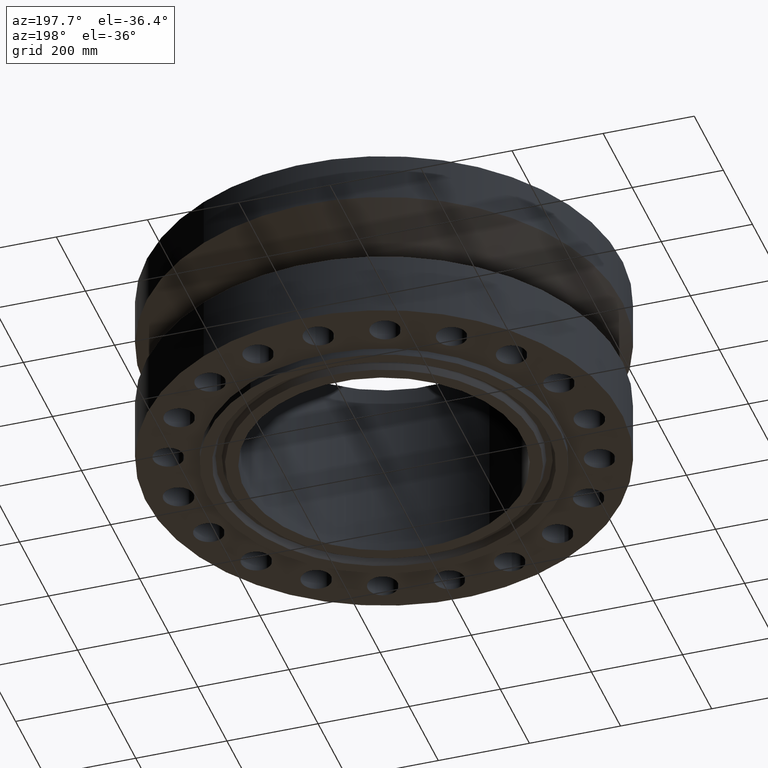
[diagram: clean part render]
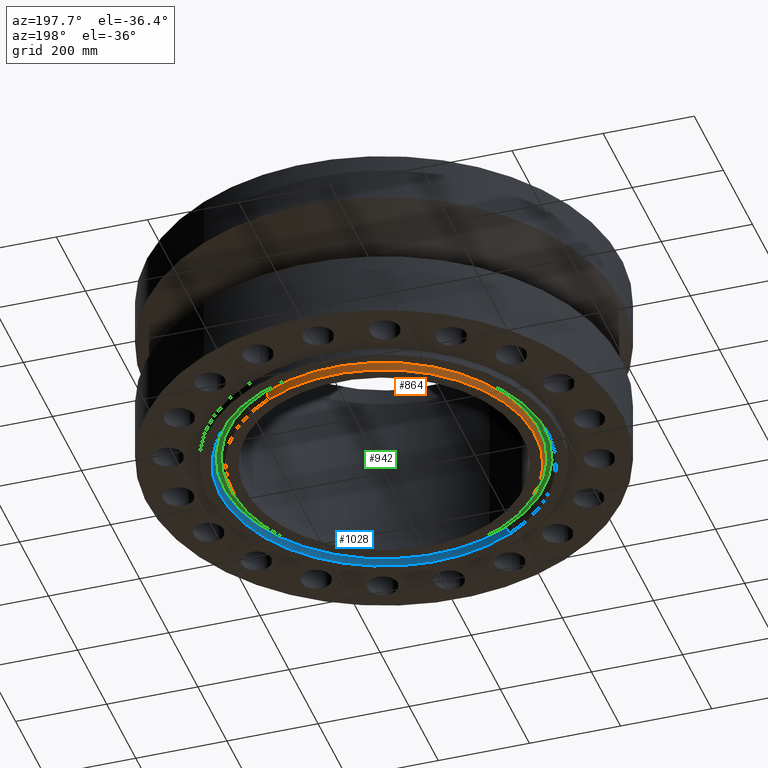
[diagram: same view with three faces highlighted in distinct colors, each labeled with its STEP entity id]
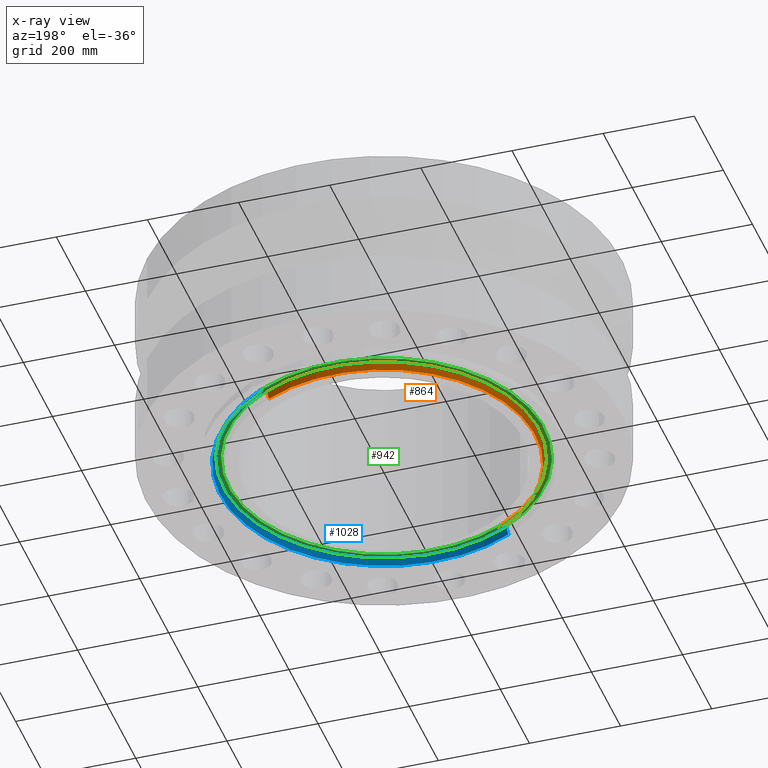
[diagram: x-ray of the same camera — body ghosted, the three highlighted faces saturated]
A machine part, auxiliary view with three faces highlighted in distinct colors.
The next image is the same camera in x-ray (body ghosted, the three faces saturated) — at least one of them is partly hidden behind the body in this view.
Their STEP definitions:

[orange] entity #864 — the highlighted conical surface has half-angle 23 deg.
#813=AXIS2_PLACEMENT_3D('Circle Axis2P3D',#811,#812,$) ;
#837=AXIS2_PLACEMENT_3D('Cone Axis2P3D',#834,#835,#836) ;
#848=AXIS2_PLACEMENT_3D('Circle Axis2P3D',#846,#847,$) ;
#811=CARTESIAN_POINT('Axis2P3D Location',(0.,0.,-0.625000000003)) ;
#815=CARTESIAN_POINT('Vertex',(-6.27735828974,-11.4906272742,-0.625000000002)) ;
#817=CARTESIAN_POINT('Vertex',(6.27735828974,11.4906272742,-0.625000000002)) ;
#834=CARTESIAN_POINT('Axis2P3D Location',(0.,0.,-0.625000000002)) ;
#839=CARTESIAN_POINT('Line Origine',(-6.3351258422,-11.5963700697,-0.341135636962)) ;
#843=CARTESIAN_POINT('Vertex',(-6.39289339467,-11.7021128652,-0.0572712739222)) ;
#846=CARTESIAN_POINT('Axis2P3D Location',(0.,0.,-0.0572712739222)) ;
#850=CARTESIAN_POINT('Vertex',(6.39289339467,11.7021128652,-0.0572712739222)) ;
#853=CARTESIAN_POINT('Line Origine',(6.3351258422,11.5963700697,-0.341135636962)) ;
#812=DIRECTION('Axis2P3D Direction',(0.,0.,-0.0393700787402)) ;
#835=DIRECTION('Axis2P3D Direction',(-0.,-0.,0.0393700787402)) ;
#836=DIRECTION('Axis2P3D XDirection',(-0.0188750212049,-0.0345504945626,0.)) ;
#840=DIRECTION('Vector Direction',(-0.00737505833565,-0.0134999537303,0.0362403485611)) ;
#847=DIRECTION('Axis2P3D Direction',(-0.,0.,0.0393700787402)) ;
#854=DIRECTION('Vector Direction',(0.00737505833565,0.0134999537303,0.0362403485611)) ;
#841=VECTOR('Line Direction',#840,0.0393700787402) ;
#855=VECTOR('Line Direction',#854,0.0393700787402) ;
#859=ORIENTED_EDGE('',*,*,#819,.F.) ;
#860=ORIENTED_EDGE('',*,*,#845,.T.) ;
#861=ORIENTED_EDGE('',*,*,#852,.T.) ;
#862=ORIENTED_EDGE('',*,*,#857,.F.) ;
#864=ADVANCED_FACE('PartBody',(#863),#838,.T.) ;
#814=CIRCLE('generated circle',#813,13.0935000001) ;
#849=CIRCLE('generated circle',#848,13.3344865467) ;
#838=CONICAL_SURFACE('Cone',#837,13.0935000001,0.401425727959) ;
#819=EDGE_CURVE('',#816,#818,#814,.T.) ;
#845=EDGE_CURVE('',#816,#844,#842,.T.) ;
#852=EDGE_CURVE('',#844,#851,#849,.F.) ;
#857=EDGE_CURVE('',#818,#851,#856,.T.) ;
#858=EDGE_LOOP('',(#859,#860,#861,#862)) ;
#863=FACE_OUTER_BOUND('',#858,.T.) ;
#842=LINE('Line',#839,#841) ;
#856=LINE('Line',#853,#855) ;
#816=VERTEX_POINT('',#815) ;
#818=VERTEX_POINT('',#817) ;
#844=VERTEX_POINT('',#843) ;
#851=VERTEX_POINT('',#850) ;

[blue] entity #1028 — the highlighted conical surface has half-angle 23 deg.
#976=AXIS2_PLACEMENT_3D('Circle Axis2P3D',#974,#975,$) ;
#989=AXIS2_PLACEMENT_3D('Cone Axis2P3D',#986,#987,#988) ;
#1019=AXIS2_PLACEMENT_3D('Circle Axis2P3D',#1017,#1018,$) ;
#952=CARTESIAN_POINT('Vertex',(-6.67145253235,-12.2120119465,-0.0572712739222)) ;
#959=CARTESIAN_POINT('Vertex',(6.67145253235,12.2120119465,-0.0572712739222)) ;
#974=CARTESIAN_POINT('Axis2P3D Location',(0.,0.,-0.0572712739222)) ;
#986=CARTESIAN_POINT('Axis2P3D Location',(0.,0.,-0.0572712739222)) ;
#991=CARTESIAN_POINT('Line Origine',(-6.72922008481,-12.317754742,-0.341135636962)) ;
#995=CARTESIAN_POINT('Vertex',(-6.78698763728,-12.4234975375,-0.625000000003)) ;
#1002=CARTESIAN_POINT('Vertex',(6.78698763728,12.4234975375,-0.625000000003)) ;
#1005=CARTESIAN_POINT('Line Origine',(6.72922008481,12.317754742,-0.341135636962)) ;
#1017=CARTESIAN_POINT('Axis2P3D Location',(0.,0.,-0.625000000003)) ;
#975=DIRECTION('Axis2P3D Direction',(0.,0.,-0.0393700787402)) ;
#987=DIRECTION('Axis2P3D Direction',(0.,0.,-0.0393700787402)) ;
#988=DIRECTION('Axis2P3D XDirection',(0.0188750212049,0.0345504945626,0.)) ;
#992=DIRECTION('Vector Direction',(-0.00737505833565,-0.0134999537303,-0.0362403485611)) ;
#1006=DIRECTION('Vector Direction',(0.00737505833565,0.0134999537303,-0.0362403485611)) ;
#1018=DIRECTION('Axis2P3D Direction',(0.,0.,-0.0393700787402)) ;
#993=VECTOR('Line Direction',#992,0.0393700787402) ;
#1007=VECTOR('Line Direction',#1006,0.0393700787402) ;
#1023=ORIENTED_EDGE('',*,*,#978,.F.) ;
#1024=ORIENTED_EDGE('',*,*,#1009,.T.) ;
#1025=ORIENTED_EDGE('',*,*,#1021,.T.) ;
#1026=ORIENTED_EDGE('',*,*,#997,.F.) ;
#1028=ADVANCED_FACE('PartBody',(#1027),#990,.F.) ;
#977=CIRCLE('generated circle',#976,13.9155134534) ;
#1020=CIRCLE('generated circle',#1019,14.1565000001) ;
#990=CONICAL_SURFACE('Cone',#989,13.9155134534,0.401425727959) ;
#978=EDGE_CURVE('',#960,#953,#977,.T.) ;
#997=EDGE_CURVE('',#953,#996,#994,.T.) ;
#1009=EDGE_CURVE('',#960,#1003,#1008,.T.) ;
#1021=EDGE_CURVE('',#1003,#996,#1020,.T.) ;
#1022=EDGE_LOOP('',(#1023,#1024,#1025,#1026)) ;
#1027=FACE_OUTER_BOUND('',#1022,.T.) ;
#994=LINE('Line',#991,#993) ;
#1008=LINE('Line',#1005,#1007) ;
#953=VERTEX_POINT('',#952) ;
#960=VERTEX_POINT('',#959) ;
#996=VERTEX_POINT('',#995) ;
#1003=VERTEX_POINT('',#1002) ;

[green] entity #942 — the highlighted planar face has unit normal (0, 0, -1).
#78=AXIS2_PLACEMENT_3D('Plane Axis2P3D',#75,#76,#77) ;
#891=AXIS2_PLACEMENT_3D('Circle Axis2P3D',#889,#890,$) ;
#910=AXIS2_PLACEMENT_3D('Circle Axis2P3D',#908,#909,$) ;
#922=AXIS2_PLACEMENT_3D('Circle Axis2P3D',#920,#921,$) ;
#931=AXIS2_PLACEMENT_3D('Circle Axis2P3D',#929,#930,$) ;
#75=CARTESIAN_POINT('Axis2P3D Location',(0.,13.4210140029,0.)) ;
#886=CARTESIAN_POINT('Vertex',(-6.43437686697,-11.7780478519,-1.39870617276E-016)) ;
#889=CARTESIAN_POINT('Axis2P3D Location',(0.,0.,-1.39870617276E-016)) ;
#893=CARTESIAN_POINT('Vertex',(6.43437686697,11.7780478519,-1.39870617276E-016)) ;
#908=CARTESIAN_POINT('Axis2P3D Location',(0.,0.,-1.39870617276E-016)) ;
#920=CARTESIAN_POINT('Axis2P3D Location',(0.,0.,0.)) ;
#924=CARTESIAN_POINT('Vertex',(-6.62996906004,-12.1360769597,3.84644197508E-016)) ;
#926=CARTESIAN_POINT('Vertex',(6.62996906004,12.1360769597,3.84644197508E-016)) ;
#929=CARTESIAN_POINT('Axis2P3D Location',(0.,0.,0.)) ;
#76=DIRECTION('Axis2P3D Direction',(0.,0.,-0.0393700787402)) ;
#77=DIRECTION('Axis2P3D XDirection',(0.0393700787402,0.,0.)) ;
#890=DIRECTION('Axis2P3D Direction',(0.,0.,-0.0393700787402)) ;
#909=DIRECTION('Axis2P3D Direction',(0.,0.,-0.0393700787402)) ;
#921=DIRECTION('Axis2P3D Direction',(0.,0.,-0.0393700787402)) ;
#930=DIRECTION('Axis2P3D Direction',(0.,0.,-0.0393700787402)) ;
#935=ORIENTED_EDGE('',*,*,#928,.T.) ;
#936=ORIENTED_EDGE('',*,*,#933,.T.) ;
#939=ORIENTED_EDGE('',*,*,#912,.F.) ;
#940=ORIENTED_EDGE('',*,*,#895,.F.) ;
#941=FACE_BOUND('',#938,.T.) ;
#942=ADVANCED_FACE('PartBody',(#937,#941),#79,.T.) ;
#892=CIRCLE('generated circle',#891,13.4210140029) ;
#911=CIRCLE('generated circle',#910,13.4210140029) ;
#923=CIRCLE('generated circle',#922,13.8289859972) ;
#932=CIRCLE('generated circle',#931,13.8289859972) ;
#895=EDGE_CURVE('',#887,#894,#892,.T.) ;
#912=EDGE_CURVE('',#894,#887,#911,.T.) ;
#928=EDGE_CURVE('',#925,#927,#923,.T.) ;
#933=EDGE_CURVE('',#927,#925,#932,.T.) ;
#934=EDGE_LOOP('',(#935,#936)) ;
#938=EDGE_LOOP('',(#939,#940)) ;
#937=FACE_OUTER_BOUND('',#934,.T.) ;
#79=PLANE('',#78) ;
#887=VERTEX_POINT('',#886) ;
#894=VERTEX_POINT('',#893) ;
#925=VERTEX_POINT('',#924) ;
#927=VERTEX_POINT('',#926) ;